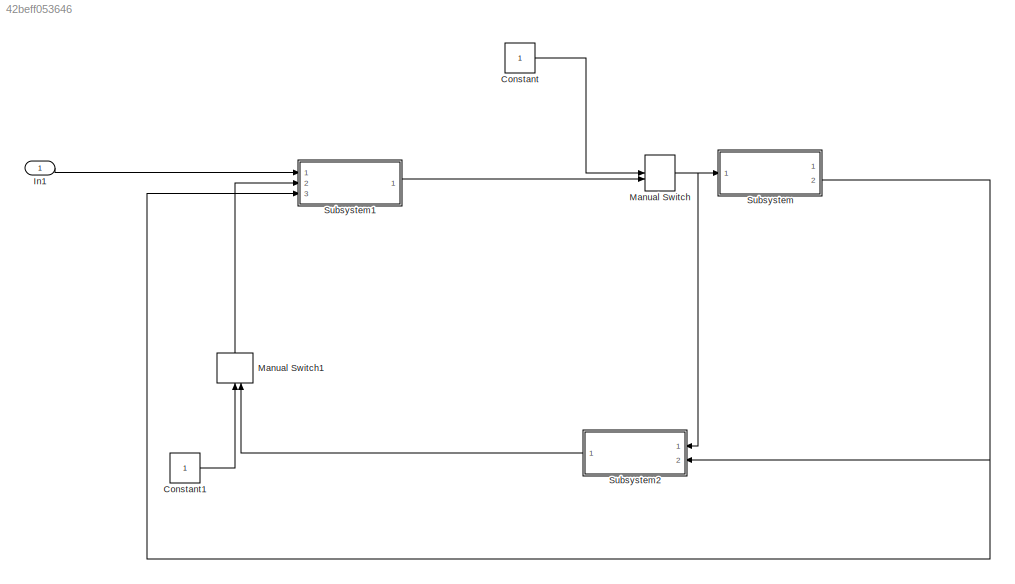
MODEL slx_42beff053646
KIND model
BLOCK [Constant] Constant
BLOCK [Constant] Constant1
BLOCK [Inport] In1
  IconDisplay = Port number
BLOCK [ManualSwitch] Manual Switch
BLOCK [ManualSwitch] Manual Switch1
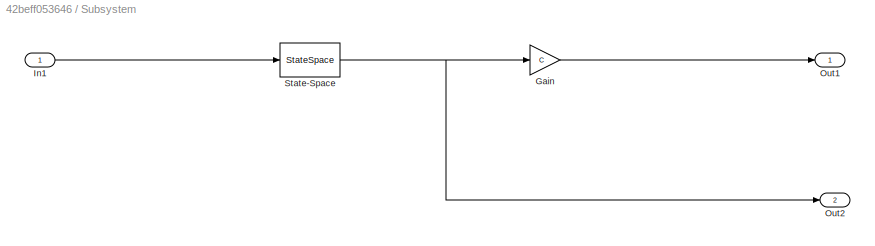
BLOCK [SubSystem] Subsystem
  Ports = [1, 2]
  RequestExecContextInheritance = off
BLOCK [Gain] Subsystem/Gain
  Gain = C
  OutDataTypeStr = Inherit: Inherit via internal rule
  ParamDataTypeStr = Inherit: Inherit via internal rule
  SaturateOnIntegerOverflow = off
BLOCK [Inport] Subsystem/In1
  IconDisplay = Port number
BLOCK [Outport] Subsystem/Out1
  IconDisplay = Port number
BLOCK [Outport] Subsystem/Out2
  IconDisplay = Port number
  Port = 2
BLOCK [StateSpace] Subsystem/State-Space
  A = Ad
  B = Bd
  C = eye(3)
  D = Dd
  Ports = [1, 1]
  X0 = 0
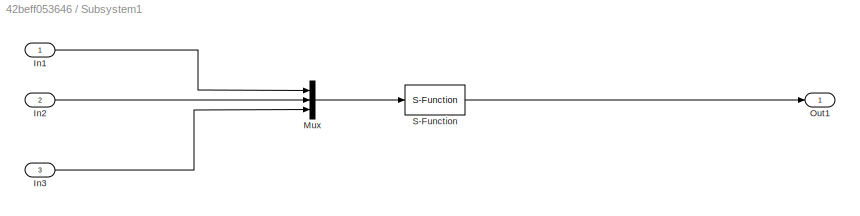
BLOCK [SubSystem] Subsystem1
  Ports = [3, 1]
  RequestExecContextInheritance = off
BLOCK [Inport] Subsystem1/In1
  IconDisplay = Port number
BLOCK [Inport] Subsystem1/In2
  IconDisplay = Port number
  Port = 2
BLOCK [Inport] Subsystem1/In3
  IconDisplay = Port number
  Port = 3
BLOCK [Mux] Subsystem1/Mux
  DisplayOption = bar
  Inputs = 3
  Ports = [3, 1]
BLOCK [Outport] Subsystem1/Out1
  IconDisplay = Port number
BLOCK [S-Function] Subsystem1/S-Function
  EnableBusSupport = off
  Ports = [1, 1]
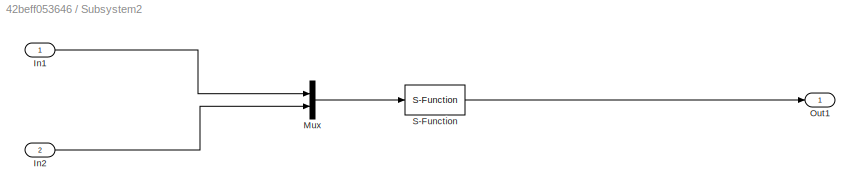
BLOCK [SubSystem] Subsystem2
  Ports = [2, 1]
  RequestExecContextInheritance = off
BLOCK [Inport] Subsystem2/In1
  IconDisplay = Port number
BLOCK [Inport] Subsystem2/In2
  IconDisplay = Port number
  Port = 2
BLOCK [Mux] Subsystem2/Mux
  DisplayOption = bar
  Inputs = 2
  Ports = [2, 1]
BLOCK [Outport] Subsystem2/Out1
  IconDisplay = Port number
BLOCK [S-Function] Subsystem2/S-Function
  EnableBusSupport = off
  Ports = [1, 1]
LINE Constant1:1 -> Manual Switch1:1
LINE Constant:1 -> Manual Switch:1
LINE In1:1 -> Subsystem1:1
LINE Manual Switch1:1 -> Subsystem1:2
NET Manual Switch:1 -> Subsystem2:1, Subsystem:1
LINE Subsystem/Gain:1 -> Subsystem/Out1:1
LINE Subsystem/In1:1 -> Subsystem/State-Space:1
NET Subsystem/State-Space:1 -> Subsystem/Gain:1, Subsystem/Out2:1
LINE Subsystem1/In1:1 -> Subsystem1/Mux:1
LINE Subsystem1/In2:1 -> Subsystem1/Mux:2
LINE Subsystem1/In3:1 -> Subsystem1/Mux:3
LINE Subsystem1/Mux:1 -> Subsystem1/S-Function:1
LINE Subsystem1/S-Function:1 -> Subsystem1/Out1:1
LINE Subsystem1:1 -> Manual Switch:2
LINE Subsystem2/In1:1 -> Subsystem2/Mux:1
LINE Subsystem2/In2:1 -> Subsystem2/Mux:2
LINE Subsystem2/Mux:1 -> Subsystem2/S-Function:1
LINE Subsystem2/S-Function:1 -> Subsystem2/Out1:1
LINE Subsystem2:1 -> Manual Switch1:2
NET Subsystem:2 -> Subsystem1:3, Subsystem2:2
note: NET lines group one-source signal fan-out (src -> all destinations, sorted); 1:1 wires keep LINE
